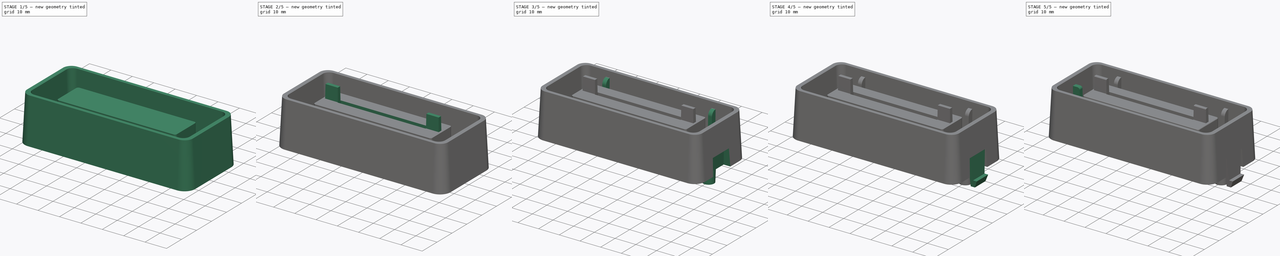
[diagram: build sequence overview — one tinted view per stage of 5, left to right]
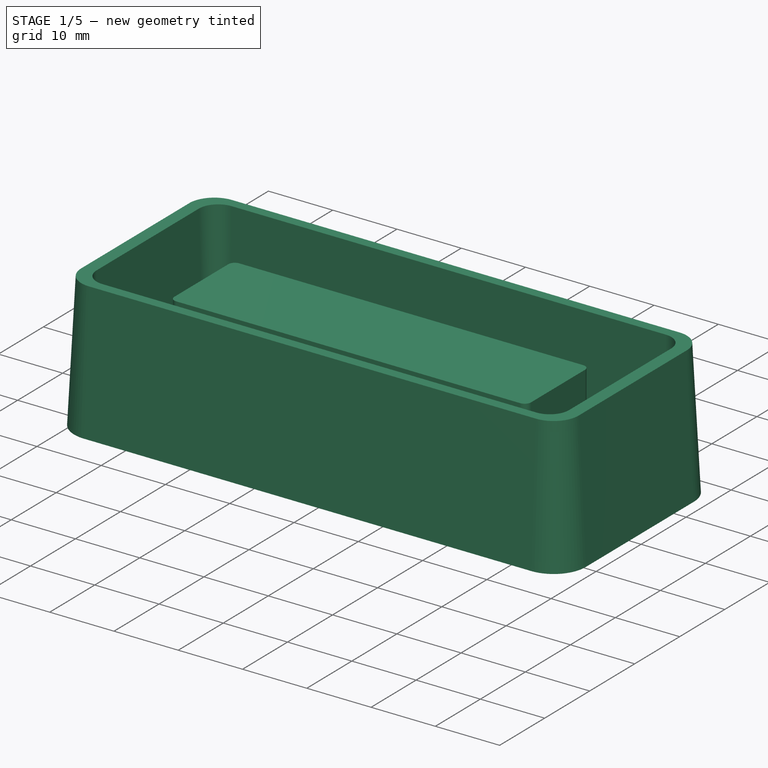
[diagram: stage 1 of 5 — iso view after this stage's code; geometry added in this stage tinted green]
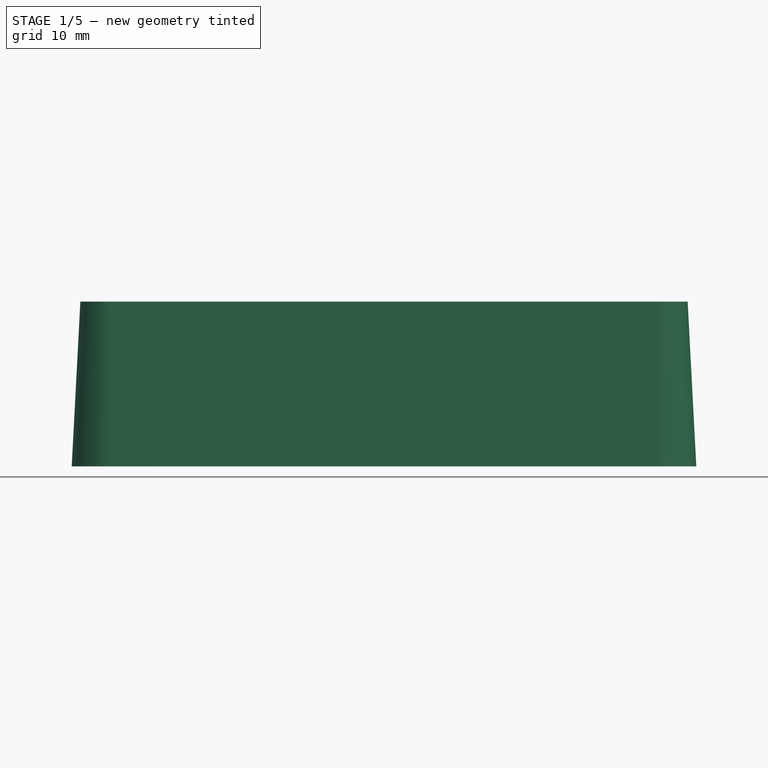
[diagram: stage 1 of 5 — front view after this stage's code; geometry added in this stage tinted green]
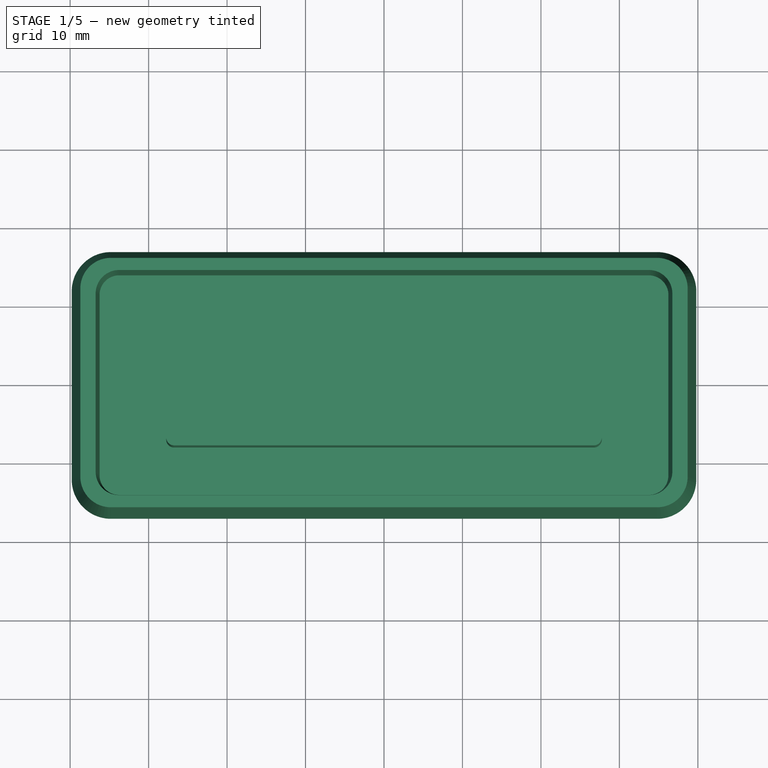
[diagram: stage 1 of 5 — top view after this stage's code; geometry added in this stage tinted green]
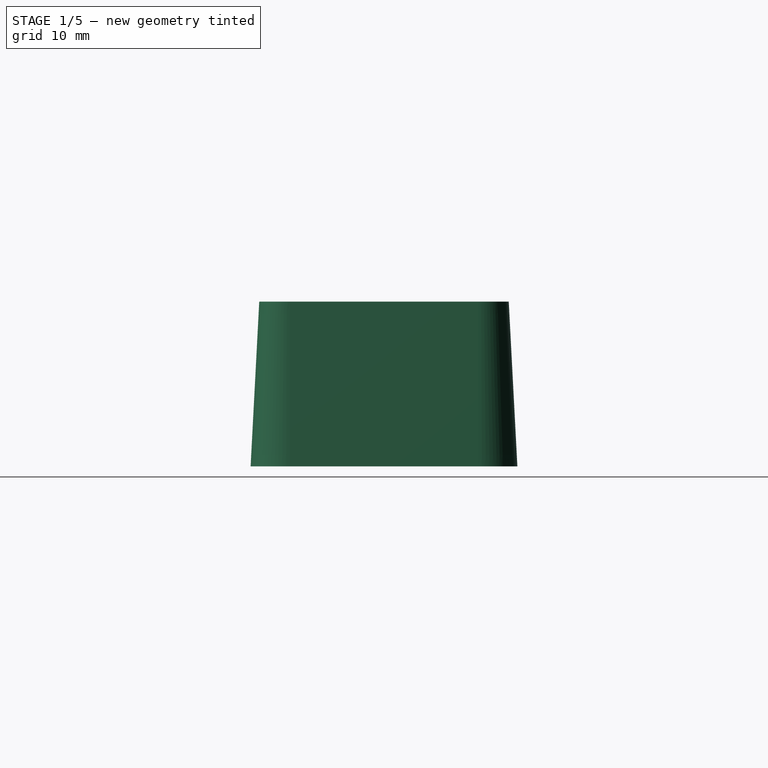
[diagram: stage 1 of 5 — right view after this stage's code; geometry added in this stage tinted green]
FCSTD DOCUMENT  (FreeCAD 1.0R38806 (Git))
Label: CartridgePort400
License: Creative Commons Attribution 4.0
LicenseURL: https://creativecommons.org/licenses/by/4.0/
objects: Sketcher::SketchObject×14, PartDesign::Pad×8, PartDesign::Pocket×6, PartDesign::SubShapeBinder×2, PartDesign::SubtractiveLoft×1, PartDesign::Fillet×1, PartDesign::Body×1
note: 79 computed .brp shape members not serialized (recipe doc carries the construction recipe); baked Part::Feature solids carry a one-line shape summary decoded from their .brp

FEATURE [Sketcher::SketchObject] Sketch
  ArcFitTolerance = 1e-06
  AttachmentSupport = -> [XY_Plane]
  FullyConstrained = true
  MakeInternals = false
  MapMode = 5
  sketch-geometry (10):
    g0: LineSegment StartX=-39.8 StartY=12 StartZ=0 EndX=-39.8 EndY=-12 EndZ=0
    g1: LineSegment StartX=-34.8 StartY=-17 StartZ=0 EndX=34.8 EndY=-17 EndZ=0
    g2: LineSegment StartX=39.8 StartY=-12 StartZ=0 EndX=39.8 EndY=12 EndZ=0
    g3: LineSegment StartX=34.8 StartY=17 StartZ=0 EndX=-34.8 EndY=17 EndZ=0
    g4: ArcOfCircle CenterX=-34.8 CenterY=12 CenterZ=0 NormalX=0 NormalY=0 NormalZ=1 AngleXU=0 Radius=5 StartAngle=1.5708 EndAngle=3.14159
    g5: ArcOfCircle CenterX=-34.8 CenterY=-12 CenterZ=0 NormalX=0 NormalY=0 NormalZ=1 AngleXU=0 Radius=5 StartAngle=3.14159 EndAngle=4.71239
    g6: ArcOfCircle CenterX=34.8 CenterY=-12 CenterZ=0 NormalX=0 NormalY=0 NormalZ=1 AngleXU=0 Radius=5 StartAngle=4.71239 EndAngle=6.28319
    g7: ArcOfCircle CenterX=34.8 CenterY=12 CenterZ=0 NormalX=0 NormalY=0 NormalZ=1 AngleXU=0 Radius=5 StartAngle=0 EndAngle=1.5708
    g8: GeomPoint [constr] X=-39.8 Y=17 Z=0
    g9: GeomPoint [constr] X=39.8 Y=-17 Z=0
  constraints (23):
    c: Tangent(g0,g4) = -1.5708
    c: Tangent(g0,g5) = -1.5708
    c: Tangent(g1,g5) = -1.5708
    c: Tangent(g1,g6) = -1.5708
    c: Tangent(g2,g6) = -1.5708
    c: Tangent(g2,g7) = -1.5708
    c: Tangent(g3,g7) = -1.5708
    c: Tangent(g3,g4) = -1.5708
    c: Vertical(g0)
    c: Vertical(g2)
    c: Horizontal(g1)
    c: Horizontal(g3)
    c: Equal(g4,g5)
    c: Equal(g5,g6)
    c: Equal(g6,g7)
    c: PointOnObject(g8,g0)
    c: PointOnObject(g8,g3)
    c: PointOnObject(g9,g1)
    c: PointOnObject(g9,g2)
    c: Distance(g0,g2) = 79.6
    c: Distance(g1,g3) = 34
    c: Radius(g5) = 5
    c: Symmetric(g5,g7,g-1)
FEATURE [PartDesign::Pad] Pad
  Direction = (0,0,1)
  Length = 21
  Length2 = 10
  Profile = -> Sketch
  ReferenceAxis = -> Sketch [N_Axis]
  Suppressed = false
  TaperAngle = -3
  Type = 0
FEATURE [Sketcher::SketchObject] Sketch001
  ArcFitTolerance = 1e-06
  AttachmentOffset = pos=(0,0,-2) rot=(0,0,1;0rad)
  AttachmentSupport = -> [Pad]
  FullyConstrained = true
  MakeInternals = false
  MapMode = 5
  Placement = pos=(0,0,2) rot=(1,0,0;3.14159rad)
  sketch-geometry (10):
    g0: LineSegment StartX=-36.25 StartY=11.5 StartZ=0 EndX=-36.25 EndY=-11.5 EndZ=0
    g1: LineSegment StartX=-33.75 StartY=-14 StartZ=0 EndX=33.75 EndY=-14 EndZ=0
    g2: LineSegment StartX=36.25 StartY=-11.5 StartZ=0 EndX=36.25 EndY=11.5 EndZ=0
    g3: LineSegment StartX=33.75 StartY=14 StartZ=0 EndX=-33.75 EndY=14 EndZ=0
    g4: ArcOfCircle CenterX=-33.75 CenterY=11.5 CenterZ=0 NormalX=0 NormalY=0 NormalZ=1 AngleXU=0 Radius=2.5 StartAngle=1.5708 EndAngle=3.14159
    g5: ArcOfCircle CenterX=-33.75 CenterY=-11.5 CenterZ=0 NormalX=0 NormalY=0 NormalZ=1 AngleXU=0 Radius=2.5 StartAngle=3.14159 EndAngle=4.71239
    g6: ArcOfCircle CenterX=33.75 CenterY=-11.5 CenterZ=0 NormalX=0 NormalY=0 NormalZ=1 AngleXU=0 Radius=2.5 StartAngle=4.71239 EndAngle=6.28319
    g7: ArcOfCircle CenterX=33.75 CenterY=11.5 CenterZ=0 NormalX=0 NormalY=0 NormalZ=1 AngleXU=0 Radius=2.5 StartAngle=0 EndAngle=1.5708
    g8: GeomPoint [constr] X=-36.25 Y=14 Z=0
    g9: GeomPoint [constr] X=36.25 Y=-14 Z=0
  constraints (23):
    c: Tangent(g0,g4) = -1.5708
    c: Tangent(g0,g5) = -1.5708
    c: Tangent(g1,g5) = -1.5708
    c: Tangent(g1,g6) = -1.5708
    c: Tangent(g2,g6) = -1.5708
    c: Tangent(g2,g7) = -1.5708
    c: Tangent(g3,g7) = -1.5708
    c: Tangent(g3,g4) = -1.5708
    c: Vertical(g0)
    c: Vertical(g2)
    c: Horizontal(g1)
    c: Horizontal(g3)
    c: Equal(g4,g5)
    c: Equal(g5,g6)
    c: Equal(g6,g7)
    c: PointOnObject(g8,g0)
    c: PointOnObject(g8,g3)
    c: PointOnObject(g9,g1)
    c: PointOnObject(g9,g2)
    c: Distance(g0,g2) = 72.5
    c: Distance(g1,g3) = 28
    c: Radius(g5) = 2.5
    c: Symmetric(g5,g7,g-1)
FEATURE [Sketcher::SketchObject] Sketch002
  ArcFitTolerance = 1e-06
  AttachmentSupport = -> [Pad]
  FullyConstrained = true
  MakeInternals = false
  MapMode = 5
  Placement = pos=(0,0,21) rot=(0,0,1;0rad)
  sketch-geometry (10):
    g0: LineSegment StartX=-36.75 StartY=11.35 StartZ=0 EndX=-36.75 EndY=-11.35 EndZ=0
    g1: LineSegment StartX=-33.75 StartY=-14.35 StartZ=0 EndX=33.75 EndY=-14.35 EndZ=0
    g2: LineSegment StartX=36.75 StartY=-11.35 StartZ=0 EndX=36.75 EndY=11.35 EndZ=0
    g3: LineSegment StartX=33.75 StartY=14.35 StartZ=0 EndX=-33.75 EndY=14.35 EndZ=0
    g4: ArcOfCircle CenterX=-33.75 CenterY=11.35 CenterZ=0 NormalX=0 NormalY=0 NormalZ=1 AngleXU=0 Radius=3 StartAngle=1.5708 EndAngle=3.14159
    g5: ArcOfCircle CenterX=-33.75 CenterY=-11.35 CenterZ=0 NormalX=0 NormalY=0 NormalZ=1 AngleXU=0 Radius=3 StartAngle=3.14159 EndAngle=4.71239
    g6: ArcOfCircle CenterX=33.75 CenterY=-11.35 CenterZ=0 NormalX=0 NormalY=0 NormalZ=1 AngleXU=0 Radius=3 StartAngle=4.71239 EndAngle=6.28319
    g7: ArcOfCircle CenterX=33.75 CenterY=11.35 CenterZ=0 NormalX=0 NormalY=0 NormalZ=1 AngleXU=0 Radius=3 StartAngle=0 EndAngle=1.5708
    g8: GeomPoint [constr] X=-36.75 Y=14.35 Z=0
    g9: GeomPoint [constr] X=36.75 Y=-14.35 Z=0
  constraints (23):
    c: Tangent(g0,g4) = -1.5708
    c: Tangent(g0,g5) = -1.5708
    c: Tangent(g1,g5) = -1.5708
    c: Tangent(g1,g6) = -1.5708
    c: Tangent(g2,g6) = -1.5708
    c: Tangent(g2,g7) = -1.5708
    c: Tangent(g3,g7) = -1.5708
    c: Tangent(g3,g4) = -1.5708
    c: Vertical(g0)
    c: Vertical(g2)
    c: Horizontal(g1)
    c: Horizontal(g3)
    c: Equal(g4,g5)
    c: Equal(g5,g6)
    c: Equal(g6,g7)
    c: PointOnObject(g8,g0)
    c: PointOnObject(g8,g3)
    c: PointOnObject(g9,g1)
    c: PointOnObject(g9,g2)
    c: Distance(g0,g2) = 73.5
    c: Distance(g1,g3) = 28.7
    c: Radius(g5) = 3
    c: Symmetric(g5,g7,g-1)
FEATURE [PartDesign::SubtractiveLoft] SubtractiveLoft
  BaseFeature = -> Pad
  Closed = false
  Profile = -> Sketch001
  Ruled = true
  Sections = -> [Sketch002]
  Suppressed = false
FEATURE [Sketcher::SketchObject] Sketch003
  ArcFitTolerance = 1e-06
  AttachmentOffset = pos=(0,0,-3) rot=(0,0,1;0rad)
  AttachmentSupport = -> [SubtractiveLoft]
  ExternalGeometry = -> [SubtractiveLoft]
  FullyConstrained = true
  MakeInternals = false
  MapMode = 5
  Placement = pos=(0,0,18) rot=(0,0,1;0rad)
  sketch-geometry (10):
    g0: LineSegment StartX=-27.75 StartY=5.05 StartZ=0 EndX=-27.75 EndY=-6.95 EndZ=0
    g1: LineSegment StartX=-26.75 StartY=-7.95 StartZ=0 EndX=26.75 EndY=-7.95 EndZ=0
    g2: LineSegment StartX=27.75 StartY=-6.95 StartZ=0 EndX=27.75 EndY=5.05 EndZ=0
    g3: LineSegment StartX=26.75 StartY=6.05 StartZ=0 EndX=-26.75 EndY=6.05 EndZ=0
    g4: ArcOfCircle CenterX=-26.75 CenterY=5.05 CenterZ=0 NormalX=0 NormalY=0 NormalZ=1 AngleXU=0 Radius=1 StartAngle=1.5708 EndAngle=3.14159
    g5: ArcOfCircle CenterX=-26.75 CenterY=-6.95 CenterZ=0 NormalX=0 NormalY=0 NormalZ=1 AngleXU=0 Radius=1 StartAngle=3.14159 EndAngle=4.71239
    g6: ArcOfCircle CenterX=26.75 CenterY=-6.95 CenterZ=0 NormalX=0 NormalY=0 NormalZ=1 AngleXU=0 Radius=1 StartAngle=4.71239 EndAngle=6.28319
    g7: ArcOfCircle CenterX=26.75 CenterY=5.05 CenterZ=0 NormalX=0 NormalY=0 NormalZ=1 AngleXU=0 Radius=1 StartAngle=0 EndAngle=1.5708
    g8: GeomPoint [constr] X=-27.75 Y=6.05 Z=0
    g9: GeomPoint [constr] X=27.75 Y=-7.95 Z=0
  constraints (23):
    c: Tangent(g0,g4) = -1.5708
    c: Tangent(g0,g5) = -1.5708
    c: Tangent(g1,g5) = -1.5708
    c: Tangent(g1,g6) = -1.5708
    c: Tangent(g2,g6) = -1.5708
    c: Tangent(g2,g7) = -1.5708
    c: Tangent(g3,g7) = -1.5708
    c: Tangent(g3,g4) = -1.5708
    c: Vertical(g0)
    c: Vertical(g2)
    c: Horizontal(g1)
    c: Horizontal(g3)
    c: Equal(g4,g5)
    c: Equal(g5,g6)
    c: PointOnObject(g8,g0)
    c: PointOnObject(g8,g3)
    c: PointOnObject(g9,g1)
    c: PointOnObject(g9,g2)
    c: Distance(g0,g2) = 55.5
    c: Distance(g1,g3) = 14
    c: Radius(g5) = 1
    c: Symmetric(g0,g2,g-2)
    c: DistanceY(g3,g-3) = 8.3
FEATURE [PartDesign::Pad] Pad001
  BaseFeature = -> SubtractiveLoft
  Direction = (0,0,1)
  Length = 20
  Length2 = 10
  Profile = -> Sketch003
  ReferenceAxis = -> Sketch003 [N_Axis]
  Reversed = true
  Suppressed = false
  Type = 3
  UpToFace = -> SubtractiveLoft [Face19]
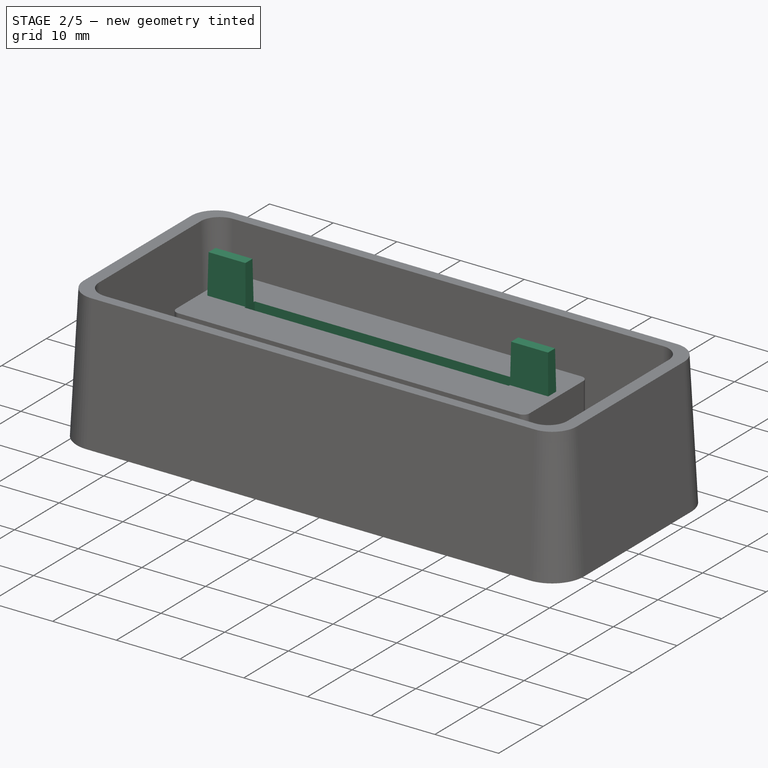
[diagram: stage 2 of 5 — iso view after this stage's code; geometry added in this stage tinted green]
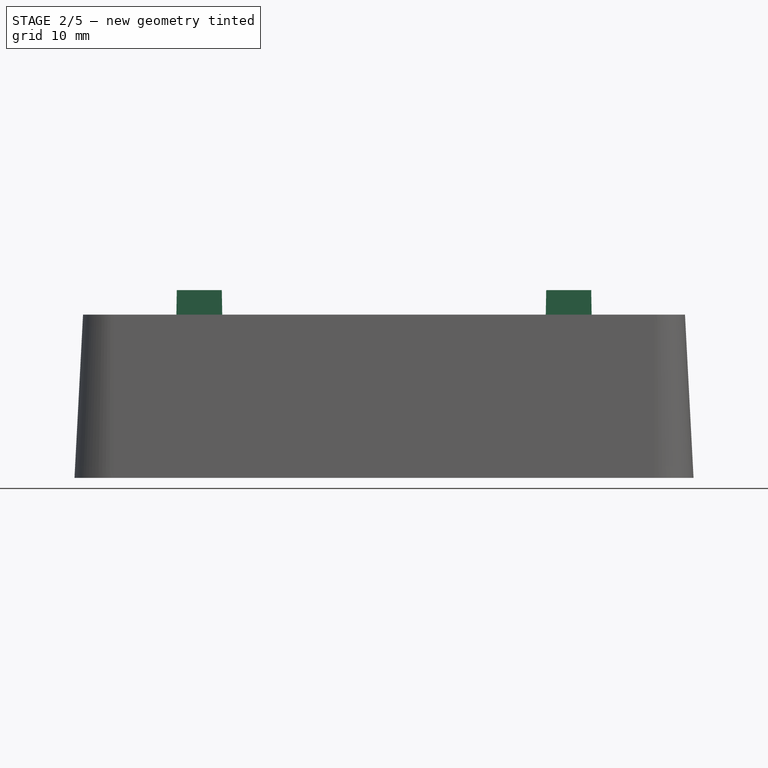
[diagram: stage 2 of 5 — front view after this stage's code; geometry added in this stage tinted green]
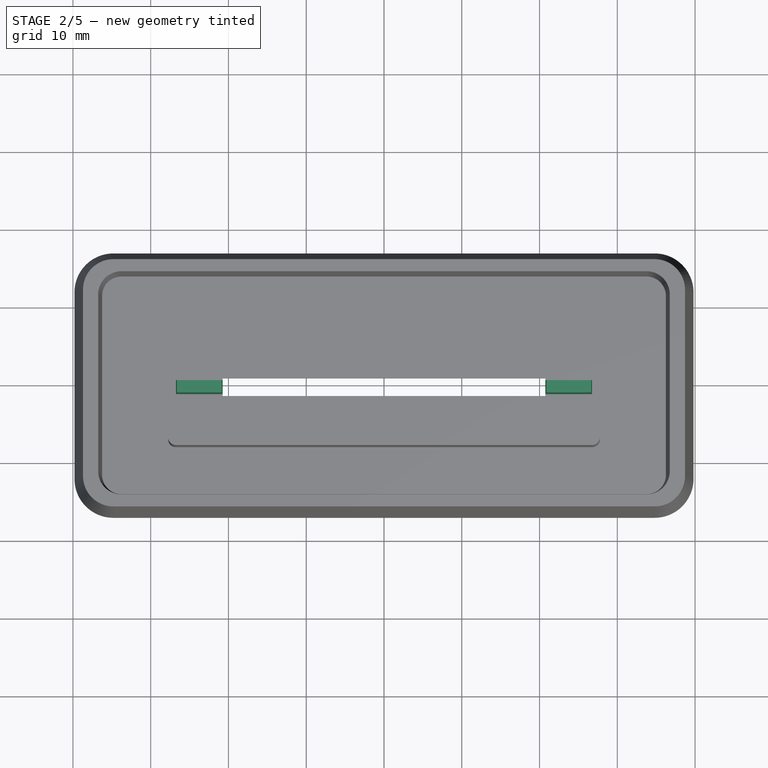
[diagram: stage 2 of 5 — top view after this stage's code; geometry added in this stage tinted green]
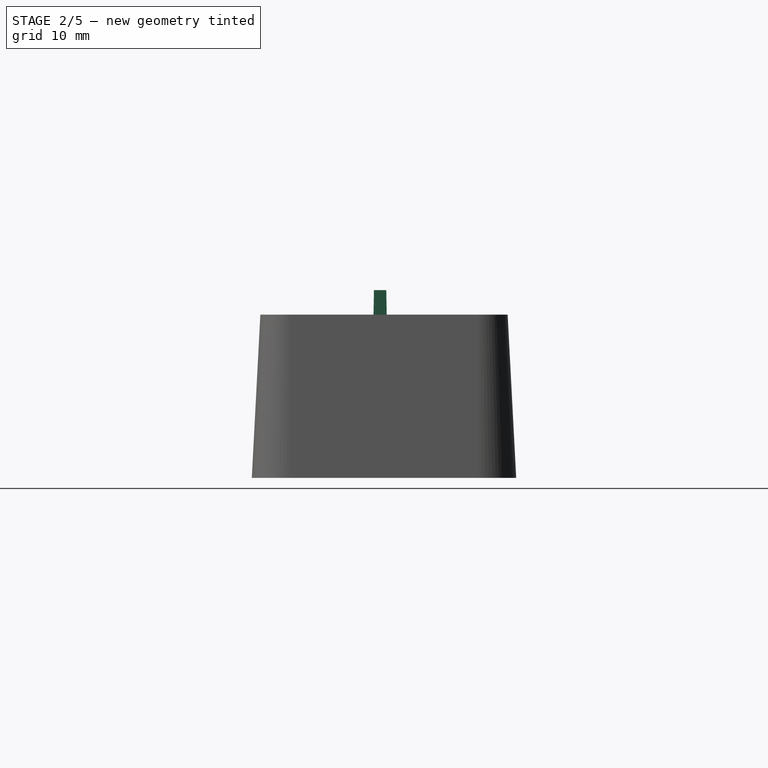
[diagram: stage 2 of 5 — right view after this stage's code; geometry added in this stage tinted green]
FEATURE [Sketcher::SketchObject] Sketch004
  ArcFitTolerance = 1e-06
  AttachmentSupport = -> [Pad001]
  ExternalGeometry = -> [Pad001]
  FullyConstrained = true
  MakeInternals = false
  MapMode = 5
  Placement = pos=(0,0,0) rot=(1,0,0;3.14159rad)
  sketch-geometry (4):
    g0: LineSegment StartX=-26 StartY=5.75 StartZ=0 EndX=-26 EndY=-4.75 EndZ=0
    g1: LineSegment StartX=-26 StartY=-4.75 StartZ=0 EndX=26 EndY=-4.75 EndZ=0
    g2: LineSegment StartX=26 StartY=-4.75 StartZ=0 EndX=26 EndY=5.75 EndZ=0
    g3: LineSegment StartX=26 StartY=5.75 StartZ=0 EndX=-26 EndY=5.75 EndZ=0
  constraints (11):
    c: Coincident(g0,g1)
    c: Coincident(g1,g2)
    c: Coincident(g2,g3)
    c: Coincident(g3,g0)
    c: Vertical(g0)
    c: Vertical(g2)
    c: Horizontal(g1)
    c: Distance(g0,g2) = 52
    c: Distance(g1,g3) = 10.5
    c: Symmetric(g0,g2,g-2)
    c: DistanceY(g-3,g1) = 12.25
FEATURE [PartDesign::Pocket] Pocket
  BaseFeature = -> Pad001
  Direction = (0,0,1)
  Length = 16
  Length2 = 5
  Profile = -> Sketch004
  ReferenceAxis = -> Sketch004 [N_Axis]
  Suppressed = false
  Type = 0
FEATURE [Sketcher::SketchObject] Sketch005
  ArcFitTolerance = 1e-06
  AttachmentSupport = -> [Pocket]
  ExternalGeometry = -> [Pocket]
  FullyConstrained = true
  MakeInternals = false
  MapMode = 5
  Placement = pos=(0,0,18) rot=(0,0,1;0rad)
  sketch-geometry (5):
    g0: LineSegment StartX=-20.75 StartY=0.65 StartZ=0 EndX=-20.75 EndY=-1.65 EndZ=0
    g1: LineSegment StartX=-20.75 StartY=-1.65 StartZ=0 EndX=20.75 EndY=-1.65 EndZ=0
    g2: LineSegment StartX=20.75 StartY=-1.65 StartZ=0 EndX=20.75 EndY=0.65 EndZ=0
    g3: LineSegment StartX=20.75 StartY=0.65 StartZ=0 EndX=-20.75 EndY=0.65 EndZ=0
    g4: GeomPoint X=-1.2e-15 Y=-0.5 Z=0
  constraints (12):
    c: Coincident(g0,g1)
    c: Coincident(g1,g2)
    c: Coincident(g2,g3)
    c: Coincident(g3,g0)
    c: Vertical(g0)
    c: Vertical(g2)
    c: Horizontal(g1)
    c: Horizontal(g3)
    c: Distance(g0,g2) = 41.5
    c: Distance(g1,g3) = 2.3
    c: Symmetric(g0,g2,g4)
    c: Symmetric(g-4,g-3,g4)
FEATURE [PartDesign::Pocket] Pocket001
  BaseFeature = -> Pocket
  Direction = (0,0,-1)
  Length = 5
  Length2 = 5
  Profile = -> Sketch005
  ReferenceAxis = -> Sketch005 [N_Axis]
  Suppressed = false
  Type = 1
FEATURE [Sketcher::SketchObject] Sketch006
  ArcFitTolerance = 1e-06
  AttachmentSupport = -> [Pocket001]
  ExternalGeometry = -> [Pocket001]
  FullyConstrained = true
  MakeInternals = false
  MapMode = 5
  Placement = pos=(0,0,18) rot=(0,0,1;0rad)
  sketch-geometry (10):
    g0: LineSegment StartX=20.75 StartY=0.4 StartZ=0 EndX=20.75 EndY=-1.4 EndZ=0
    g1: LineSegment StartX=20.75 StartY=-1.4 StartZ=0 EndX=26.75 EndY=-1.4 EndZ=0
    g2: LineSegment StartX=26.75 StartY=-1.4 StartZ=0 EndX=26.75 EndY=0.4 EndZ=0
    g3: LineSegment StartX=26.75 StartY=0.4 StartZ=0 EndX=20.75 EndY=0.4 EndZ=0
    g4: GeomPoint X=20.75 Y=-0.5 Z=0
    g5: GeomPoint X=-20.75 Y=-0.5 Z=0
    g6: LineSegment StartX=-20.75 StartY=0.4 StartZ=0 EndX=-26.75 EndY=0.4 EndZ=0
    g7: LineSegment StartX=-26.75 StartY=0.4 StartZ=0 EndX=-26.75 EndY=-1.4 EndZ=0
    g8: LineSegment StartX=-26.75 StartY=-1.4 StartZ=0 EndX=-20.75 EndY=-1.4 EndZ=0
    g9: LineSegment StartX=-20.75 StartY=-1.4 StartZ=0 EndX=-20.75 EndY=0.4 EndZ=0
  constraints (24):
    c: Coincident(g0,g1)
    c: Coincident(g1,g2)
    c: Coincident(g2,g3)
    c: Coincident(g3,g0)
    c: Vertical(g0)
    c: Vertical(g2)
    c: Horizontal(g1)
    c: Horizontal(g3)
    c: Distance(g0,g2) = 6
    c: Distance(g1,g3) = 1.8
    c: Symmetric(g-4,g-4,g4)
    c: Symmetric(g-3,g-3,g5)
    c: Symmetric(g0,g0,g4)
    c: Coincident(g6,g7)
    c: Coincident(g7,g8)
    c: Coincident(g8,g9)
    c: Coincident(g9,g6)
    c: Horizontal(g6)
    c: Horizontal(g8)
    c: Vertical(g7)
    c: Vertical(g9)
    c: Equal(g6,g3)
    c: Equal(g7,g2)
    c: Symmetric(g6,g8,g5)
FEATURE [PartDesign::Pad] Pad002
  BaseFeature = -> Pocket001
  Direction = (0,0,1)
  Length = 6.15
  Length2 = 10
  Profile = -> Sketch006
  ReferenceAxis = -> Sketch006 [N_Axis]
  Refine = true
  Suppressed = false
  TaperAngle = -1
  Type = 0
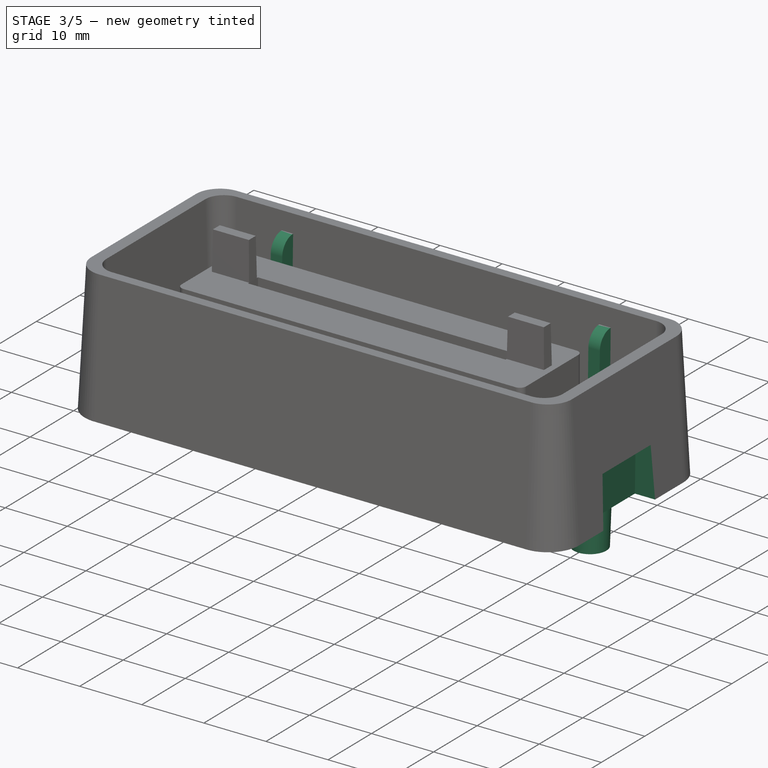
[diagram: stage 3 of 5 — iso view after this stage's code; geometry added in this stage tinted green]
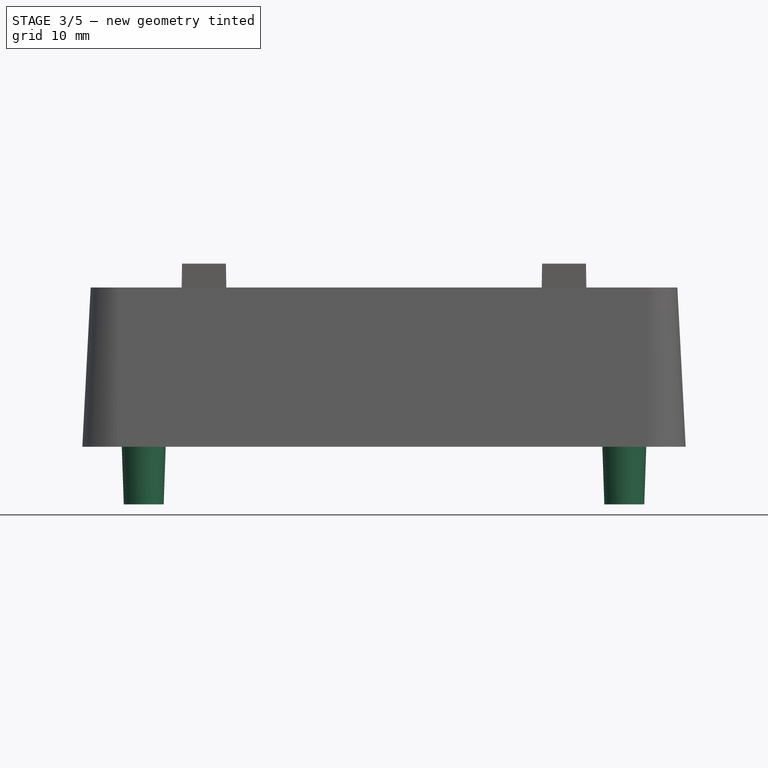
[diagram: stage 3 of 5 — front view after this stage's code; geometry added in this stage tinted green]
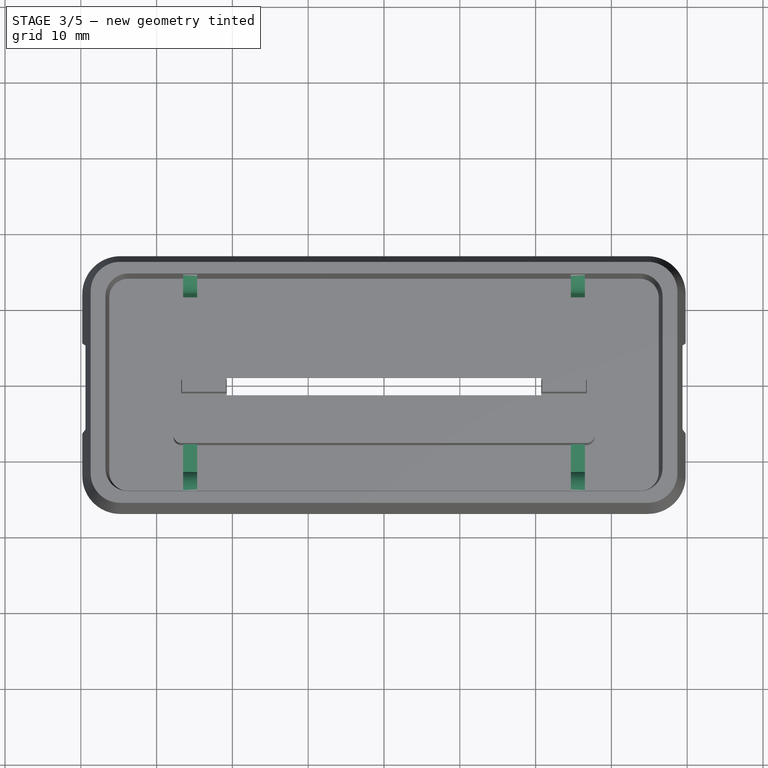
[diagram: stage 3 of 5 — top view after this stage's code; geometry added in this stage tinted green]
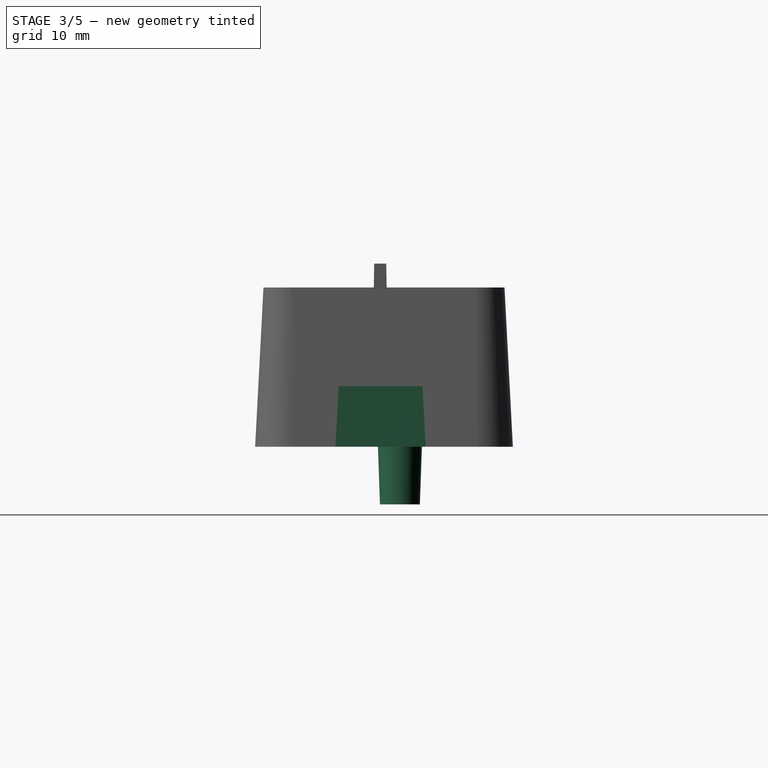
[diagram: stage 3 of 5 — right view after this stage's code; geometry added in this stage tinted green]
FEATURE [Sketcher::SketchObject] Sketch007
  ArcFitTolerance = 1e-06
  AttachmentOffset = pos=(0,0,-24.65) rot=(0,0,1;0rad)
  AttachmentSupport = -> [YZ_Plane]
  ExternalGeometry = -> [Pad002]
  FullyConstrained = true
  MakeInternals = false
  MapMode = 5
  Placement = pos=(-24.65,0,0) rot=(0.57735,0.57735,0.57735;2.0944rad)
  sketch-geometry (13):
    g0: LineSegment StartX=14.2966 StartY=0 StartZ=0 EndX=14.2966 EndY=18.1005 EndZ=0
    g1: ArcOfCircle CenterX=14.2966 CenterY=15.6005 CenterZ=0 NormalX=0 NormalY=0 NormalZ=1 AngleXU=0 Radius=2.5 StartAngle=1.5708 EndAngle=3.12317
    g2: LineSegment StartX=11.797 StartY=15.6465 StartZ=0 EndX=11.5088 EndY=0 EndZ=0
    g3: LineSegment StartX=11.5088 StartY=0 StartZ=0 EndX=14.2966 EndY=0 EndZ=0
    g4: LineSegment [constr] StartX=14.35 StartY=21 StartZ=0 EndX=14 EndY=2 EndZ=0
    g5: LineSegment [constr] StartX=-14.35 StartY=21 StartZ=0 EndX=-14 EndY=2 EndZ=0
    g6: LineSegment [constr] StartX=-7.95 StartY=18 StartZ=0 EndX=-7.95 EndY=2 EndZ=0
    g7: LineSegment StartX=-14 StartY=2 StartZ=0 EndX=-7.95 EndY=2 EndZ=0
    g8: LineSegment StartX=-7.95 StartY=2 StartZ=0 EndX=-7.95 EndY=9 EndZ=0
    g9: LineSegment StartX=-7.95 StartY=9 StartZ=0 EndX=-11.6285 EndY=9 EndZ=0
    g10: LineSegment StartX=-11.6285 StartY=9 StartZ=0 EndX=-11.7491 EndY=15.5465 EndZ=0
    g11: ArcOfCircle CenterX=-14.2487 CenterY=15.5004 CenterZ=0 NormalX=0 NormalY=0 NormalZ=1 AngleXU=0 Radius=2.5 StartAngle=0.018419 EndAngle=1.58922
    g12: LineSegment StartX=-14.2947 StartY=18 StartZ=0 EndX=-14 EndY=2 EndZ=0
  constraints (33):
    c: PointOnObject(g0,g-1)
    c: Vertical(g0)
    c: Perpendicular(g0,g1) = 1.5708
    c: PointOnObject(g2,g-1)
    c: Coincident(g2,g3)
    c: Coincident(g3,g0)
    c: Coincident(g4,g-3)
    c: Coincident(g4,g-4)
    c: Tangent(g1,g2) = -1.5708
    c: PointOnObject(g0,g4)
    c: Distance(g4,g0) = 2.9
    c: Distance(g1,g1) = 2.5
    c: Parallel(g2,g4)
    c: Coincident(g5,g-5)
    c: Coincident(g5,g-6)
    c: Coincident(g6,g-7)
    c: Coincident(g6,g-8)
    c: Coincident(g5,g7)
    c: Coincident(g7,g6)
    c: Coincident(g7,g8)
    c: PointOnObject(g8,g6)
    c: Coincident(g8,g9)
    c: Horizontal(g9)
    c: Coincident(g9,g10)
    c: Tangent(g10,g11) = -1.5708
    c: PointOnObject(g11,g5)
    c: Coincident(g11,g12)
    c: Coincident(g12,g7)
    c: Parallel(g12,g10)
    c: PointOnObject(g11,g12)
    c: DistanceY(g9,g5) = 12
    c: DistanceY(g11,g5) = 3
    c: Distance(g11,g10) = 2.5
FEATURE [PartDesign::SubShapeBinder] Binder
  BindCopyOnChange = 0
  BindMode = 0
  ClaimChildren = false
  Context = -> Body [Binder.]
  Fuse = false
  MakeFace = true
  OffsetFill = false
  OffsetIntersection = false
  OffsetJoinType = 0
  OffsetOpenResult = false
  PartialLoad = false
  Placement = pos=(49.3,0,0) rot=(0,0,1;0rad)
  Relative = true
  Support = -> [Sketch007]
  _Version = 2
FEATURE [PartDesign::Pad] Pad003
  BaseFeature = -> Pad002
  Direction = (1,0,0)
  Length = 1.85
  Length2 = 10
  Profile = -> Sketch007
  ReferenceAxis = -> Sketch007 [N_Axis]
  Reversed = true
  Suppressed = false
  Type = 0
FEATURE [PartDesign::Pad] Pad004
  BaseFeature = -> Pad003
  Direction = (1,0,0)
  Length = 1.85
  Length2 = 10
  Profile = -> Binder
  Refine = true
  Suppressed = false
  Type = 0
FEATURE [Sketcher::SketchObject] Sketch008
  ArcFitTolerance = 1e-06
  AttachmentSupport = -> [Pad004]
  ExternalGeometry = -> [Pad004]
  FullyConstrained = true
  MakeInternals = false
  MapMode = 5
  Placement = pos=(0,0,0) rot=(1,0,0;3.14159rad)
  sketch-geometry (2):
    g0: Circle CenterX=-31.7 CenterY=-2.1 CenterZ=0 NormalX=0 NormalY=0 NormalZ=1 AngleXU=0 Radius=2.9
    g1: Circle CenterX=31.7 CenterY=-2.1 CenterZ=0 NormalX=0 NormalY=0 NormalZ=1 AngleXU=0 Radius=2.9
  constraints (5):
    c: Equal(g0,g1)
    c: Diameter(g1) = 5.8
    c: Symmetric(g0,g1,g-2)
    c: DistanceY(g-3,g1) = 14.9
    c: DistanceX(g0,g1) = 63.4
FEATURE [PartDesign::Pad] Pad005
  BaseFeature = -> Pad004
  Direction = (0,0,-1)
  Length = 7.6
  Length2 = 10
  Profile = -> Sketch008
  ReferenceAxis = -> Sketch008 [N_Axis]
  Suppressed = false
  TaperAngle = 2
  Type = 0
FEATURE [Sketcher::SketchObject] Sketch009
  ArcFitTolerance = 1e-06
  AttachmentSupport = -> [Pad005]
  ExternalGeometry = -> [Pad005]
  FullyConstrained = true
  MakeInternals = false
  MapMode = 5
  Placement = pos=(0,0,0) rot=(1,0,0;3.14159rad)
  sketch-geometry (8):
    g0: LineSegment StartX=-39.8 StartY=6.4 StartZ=0 EndX=-39.8 EndY=-5.5 EndZ=0
    g1: LineSegment StartX=-39.8 StartY=-5.5 StartZ=0 EndX=-36.55 EndY=-5.5 EndZ=0
    g2: LineSegment StartX=-36.55 StartY=-5.5 StartZ=0 EndX=-36.55 EndY=6.4 EndZ=0
    g3: LineSegment StartX=-36.55 StartY=6.4 StartZ=0 EndX=-39.8 EndY=6.4 EndZ=0
    g4: LineSegment StartX=39.8 StartY=6.4 StartZ=0 EndX=36.55 EndY=6.4 EndZ=0
    g5: LineSegment StartX=36.55 StartY=6.4 StartZ=0 EndX=36.55 EndY=-5.5 EndZ=0
    g6: LineSegment StartX=36.55 StartY=-5.5 StartZ=0 EndX=39.8 EndY=-5.5 EndZ=0
    g7: LineSegment StartX=39.8 StartY=-5.5 StartZ=0 EndX=39.8 EndY=6.4 EndZ=0
  constraints (24):
    c: Coincident(g0,g1)
    c: Coincident(g1,g2)
    c: Coincident(g2,g3)
    c: Coincident(g3,g0)
    c: Vertical(g0)
    c: Vertical(g2)
    c: Horizontal(g1)
    c: Horizontal(g3)
    c: Distance(g0,g2) = 3.25
    c: Distance(g1,g3) = 11.9
    c: PointOnObject(g0,g-3)
    c: DistanceY(g-5,g1) = 11.5
    c: Coincident(g4,g5)
    c: Coincident(g5,g6)
    c: Coincident(g6,g7)
    c: Coincident(g7,g4)
    c: Horizontal(g4)
    c: Horizontal(g6)
    c: Vertical(g5)
    c: Vertical(g7)
    c: PointOnObject(g4,g-4)
    c: Equal(g3,g4)
    c: Horizontal(g2,g4)
    c: Horizontal(g1,g5)
FEATURE [PartDesign::Pocket] Pocket002
  BaseFeature = -> Pad005
  Direction = (0,0,1)
  Length = 8
  Length2 = 5
  Profile = -> Sketch009
  ReferenceAxis = -> Sketch009 [N_Axis]
  Suppressed = false
  TaperAngle = -3
  Type = 0
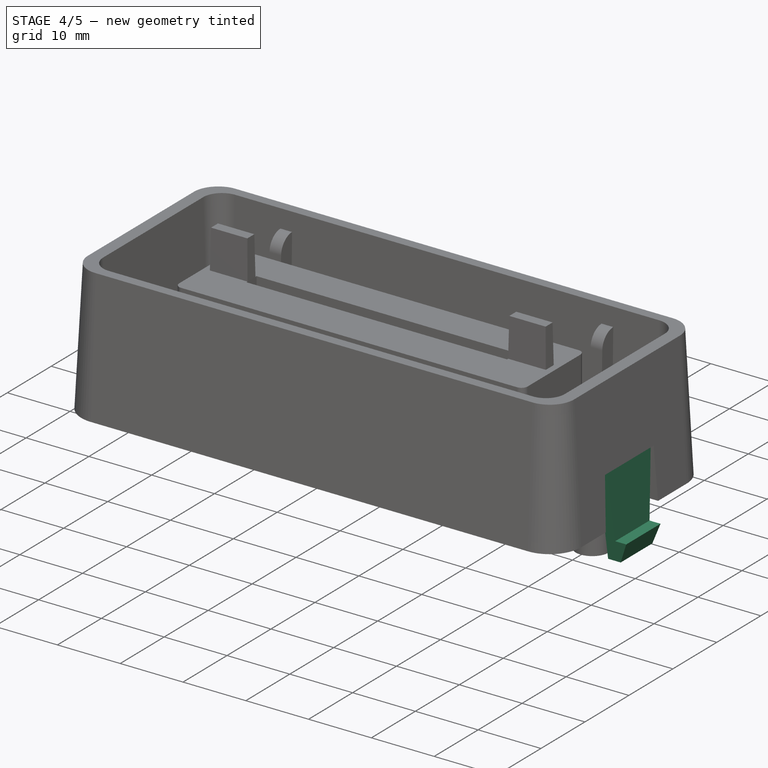
[diagram: stage 4 of 5 — iso view after this stage's code; geometry added in this stage tinted green]
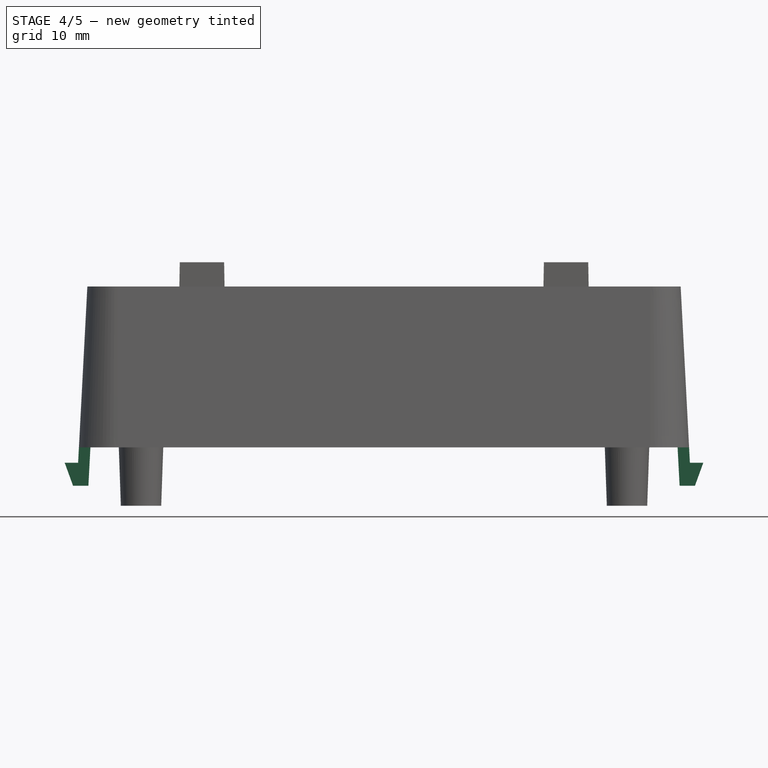
[diagram: stage 4 of 5 — front view after this stage's code; geometry added in this stage tinted green]
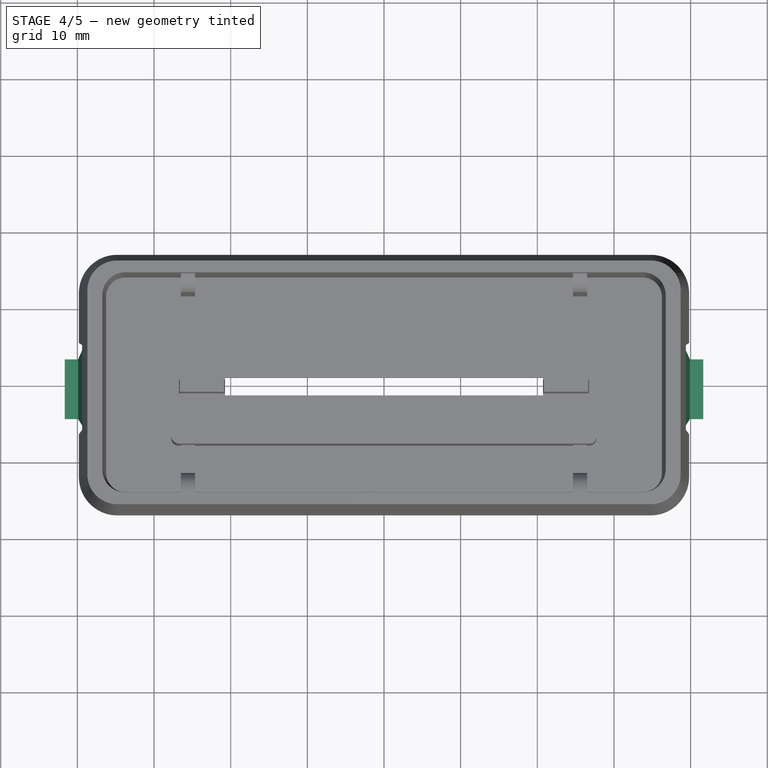
[diagram: stage 4 of 5 — top view after this stage's code; geometry added in this stage tinted green]
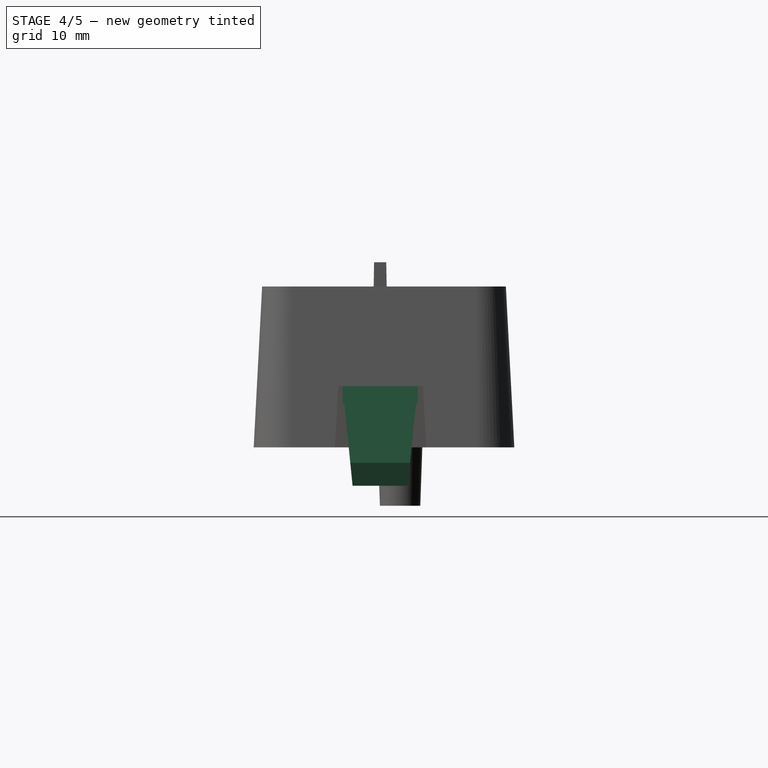
[diagram: stage 4 of 5 — right view after this stage's code; geometry added in this stage tinted green]
FEATURE [Sketcher::SketchObject] Sketch010
  ArcFitTolerance = 1e-06
  AttachmentOffset = pos=(0,0,0.5) rot=(0,0,1;0rad)
  AttachmentSupport = -> [XZ_Plane]
  ExternalGeometry = -> [Pocket002]
  FullyConstrained = true
  MakeInternals = false
  MapMode = 5
  Placement = pos=(0,-0.5,1e-16) rot=(1,0,0;1.5708rad)
  sketch-geometry (15):
    g0: LineSegment StartX=-39.3807 StartY=8 StartZ=0 EndX=-36.4807 EndY=8 EndZ=0
    g1: LineSegment StartX=-38.562 StartY=-5 StartZ=0 EndX=-40.5629 EndY=-5 EndZ=0
    g2: LineSegment StartX=-40.5629 StartY=-5 StartZ=0 EndX=-41.6548 EndY=-2 EndZ=0
    g3: LineSegment StartX=-41.6548 StartY=-2 StartZ=0 EndX=-39.9048 EndY=-2 EndZ=0
    g4: LineSegment StartX=-39.9048 StartY=-2 StartZ=0 EndX=-39.3807 EndY=8 EndZ=0
    g5: LineSegment StartX=39.3807 StartY=8 StartZ=0 EndX=39.9048 EndY=-2 EndZ=0
    g6: LineSegment StartX=39.9048 StartY=-2 StartZ=0 EndX=41.6548 EndY=-2 EndZ=0
    g7: LineSegment StartX=41.6548 StartY=-2 StartZ=0 EndX=40.5629 EndY=-5 EndZ=0
    g8: LineSegment StartX=40.5629 StartY=-5 StartZ=0 EndX=38.562 EndY=-5 EndZ=0
    g9: LineSegment StartX=36.4807 StartY=8 StartZ=0 EndX=39.3807 EndY=8 EndZ=0
    g10: LineSegment StartX=-38.0022 StartY=5.6817 StartZ=0 EndX=-38.562 EndY=-5 EndZ=0
    g11: ArcOfCircle CenterX=-35.256 CenterY=5.53778 CenterZ=0 NormalX=0 NormalY=0 NormalZ=1 AngleXU=0 Radius=2.75 StartAngle=2.03237 EndAngle=3.08923
    g12: GeomPoint X=-38.3 Y=0 Z=0
    g13: LineSegment StartX=38.562 StartY=-5 StartZ=0 EndX=38.0022 EndY=5.6817 EndZ=0
    g14: ArcOfCircle CenterX=35.256 CenterY=5.53778 CenterZ=0 NormalX=0 NormalY=0 NormalZ=1 AngleXU=0 Radius=2.75 StartAngle=0.0523599 EndAngle=1.10922
  constraints (43):
    c: Horizontal(g0)
    c: Coincident(g10,g1)
    c: Horizontal(g1)
    c: Coincident(g1,g2)
    c: Coincident(g2,g3)
    c: Horizontal(g3)
    c: Coincident(g3,g4)
    c: Coincident(g4,g0)
    c: DistanceX(g3,g3) = 1.75
    c: DistanceY(g10,g3) = 3
    c: Coincident(g5,g6)
    c: Horizontal(g6)
    c: Coincident(g6,g7)
    c: Coincident(g7,g8)
    c: Horizontal(g8)
    c: Coincident(g8,g13)
    c: Coincident(g9,g5)
    c: Horizontal(g9)
    c: Horizontal(g3,g5)
    c: Horizontal(g10,g8)
    c: Equal(g1,g8)
    c: PointOnObject(g0,g-4)
    c: PointOnObject(g5,g-3)
    c: Coincident(g5,g-5)
    c: DistanceY(g5,g-3) = 2
    c: Horizontal(g0,g9)
    c: PointOnObject(g3,g-4)
    c: Angle(g2,g3) = 1.22173
    c: Parallel(g4,g10)
    c: PointOnObject(g12,g10)
    c: PointOnObject(g12,g-1)
    c: Distance(g-4,g12) = 1.5
    c: Radius(g11) = 2.75
    c: Tangent(g11,g10) = -1.5708
    c: Coincident(g0,g11)
    c: Distance(g0,g0) = 2.9
    c: Parallel(g13,g5)
    c: Coincident(g14,g9)
    c: Tangent(g14,g13) = -1.5708
    c: Horizontal(g11,g14)
    c: Horizontal(g10,g13)
    c: Equal(g0,g9)
    c: Angle(g6,g7) = 1.22173
FEATURE [PartDesign::Pad] Pad006
  BaseFeature = -> Pocket002
  Direction = (0,-1,2e-16)
  Length = 9.8
  Length2 = 10
  Midplane = true
  Profile = -> Sketch010
  ReferenceAxis = -> Sketch010 [N_Axis]
  Refine = true
  Suppressed = false
  Type = 0
FEATURE [Sketcher::SketchObject] Sketch011
  ArcFitTolerance = 1e-06
  AttachmentOffset = pos=(0,0,42) rot=(0,0,1;0rad)
  AttachmentSupport = -> [YZ_Plane]
  ExternalGeometry = -> [Pad006]
  FullyConstrained = true
  MakeInternals = false
  MapMode = 5
  Placement = pos=(42,0,0) rot=(0.57735,0.57735,0.57735;2.0944rad)
  sketch-geometry (6):
    g0: LineSegment StartX=-5.4 StartY=8 StartZ=0 EndX=-5.4 EndY=-5 EndZ=0
    g1: LineSegment StartX=-5.4 StartY=-5 StartZ=0 EndX=-4.1 EndY=-5 EndZ=0
    g2: LineSegment StartX=-4.1 StartY=-5 StartZ=0 EndX=-5.4 EndY=8 EndZ=0
    g3: LineSegment StartX=4.4 StartY=8 StartZ=0 EndX=4.4 EndY=-5 EndZ=0
    g4: LineSegment StartX=4.4 StartY=-5 StartZ=0 EndX=3.1 EndY=-5 EndZ=0
    g5: LineSegment StartX=3.1 StartY=-5 StartZ=0 EndX=4.4 EndY=8 EndZ=0
  constraints (14):
    c: Coincident(g0,g-4)
    c: Coincident(g0,g-3)
    c: Coincident(g0,g1)
    c: PointOnObject(g1,g-3)
    c: Coincident(g1,g2)
    c: Coincident(g2,g0)
    c: Coincident(g3,g-5)
    c: Coincident(g3,g-3)
    c: Coincident(g3,g4)
    c: PointOnObject(g4,g-3)
    c: Coincident(g4,g5)
    c: Coincident(g5,g3)
    c: Equal(g1,g4)
    c: DistanceX(g1,g4) = 7.2
FEATURE [PartDesign::Pocket] Pocket003
  BaseFeature = -> Pad006
  Direction = (-1,0,0)
  Length = 0
  Length2 = 5
  Profile = -> Sketch011
  ReferenceAxis = -> Sketch011 [N_Axis]
  Suppressed = false
  Type = 3
  UpToFace = -> Pad006 [Face75]
FEATURE [PartDesign::SubShapeBinder] Binder001
  BindCopyOnChange = 0
  BindMode = 0
  ClaimChildren = false
  Context = -> Body [Binder001.]
  Fuse = false
  MakeFace = true
  OffsetFill = false
  OffsetIntersection = false
  OffsetJoinType = 0
  OffsetOpenResult = false
  PartialLoad = false
  Placement = pos=(-84,0,0) rot=(0,0,1;0rad)
  Relative = true
  Support = -> [Sketch011]
  _Version = 2
FEATURE [PartDesign::Pocket] Pocket004
  BaseFeature = -> Pocket003
  Direction = (-1,0,0)
  Length = 0
  Length2 = 5
  Profile = -> Binder001
  Refine = true
  Reversed = true
  Suppressed = false
  Type = 3
  UpToFace = -> Pocket003 [Face50]
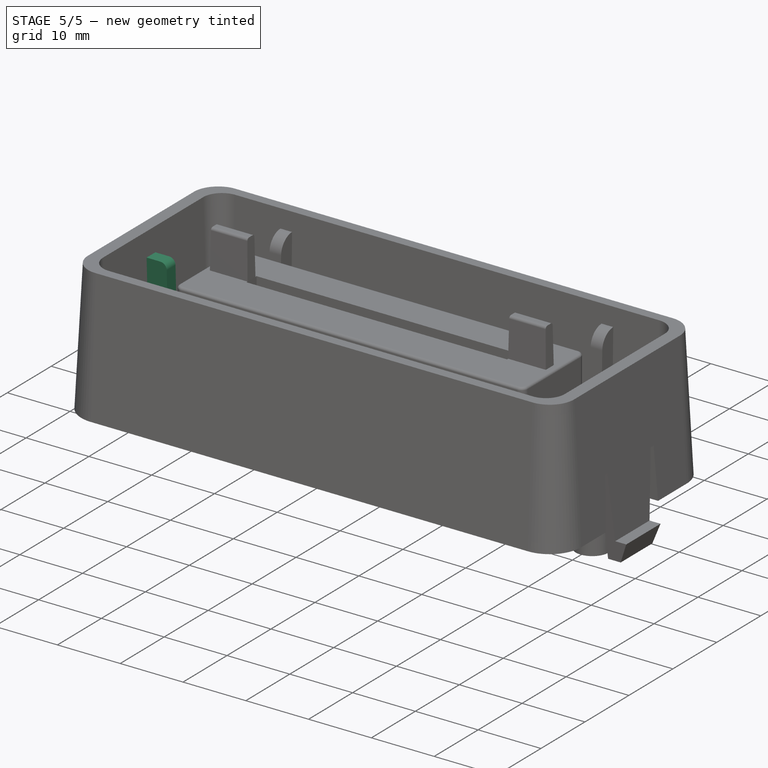
[diagram: stage 5 of 5 — iso view after this stage's code; geometry added in this stage tinted green]
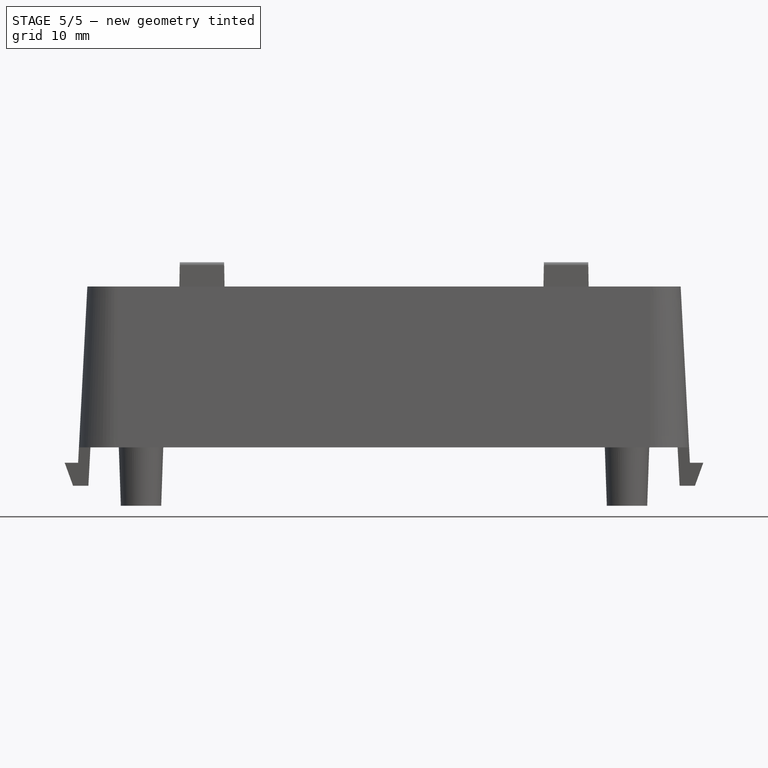
[diagram: stage 5 of 5 — front view after this stage's code; geometry added in this stage tinted green]
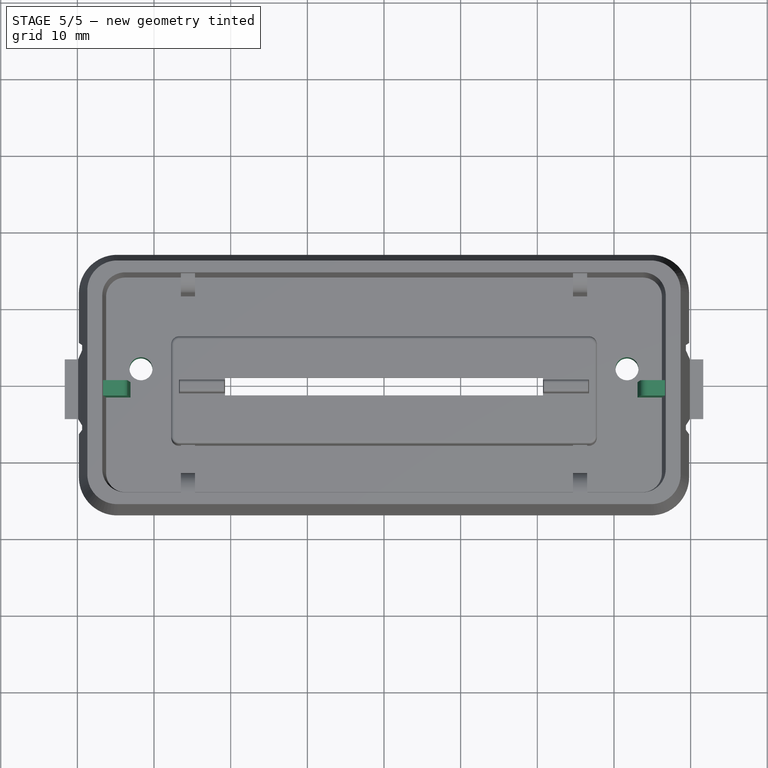
[diagram: stage 5 of 5 — top view after this stage's code; geometry added in this stage tinted green]
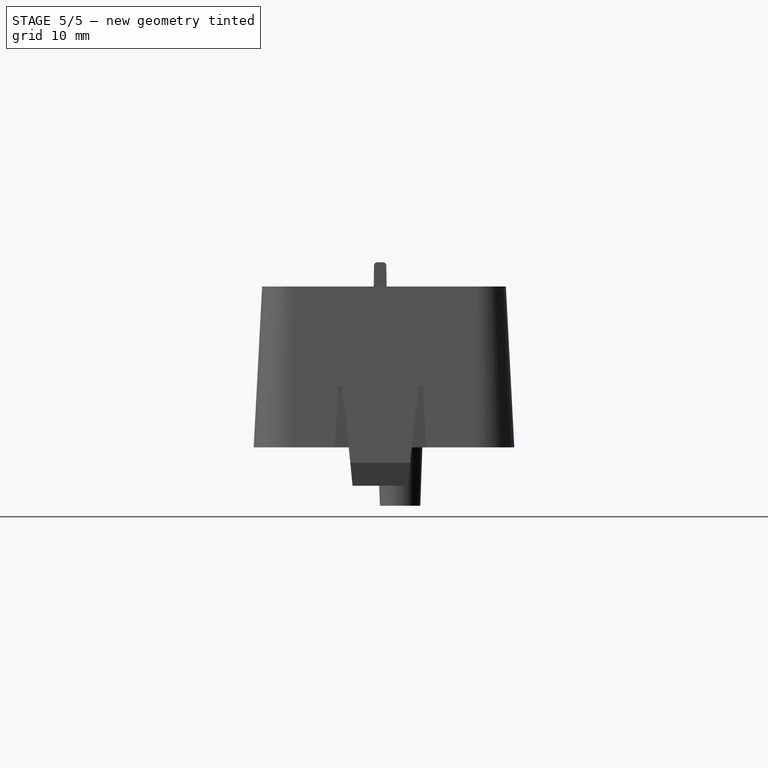
[diagram: stage 5 of 5 — right view after this stage's code; geometry added in this stage tinted green]
FEATURE [Sketcher::SketchObject] Sketch012
  ArcFitTolerance = 1e-06
  AttachmentSupport = -> [Pocket004]
  ExternalGeometry = -> [Pocket004]
  FullyConstrained = true
  MakeInternals = false
  MapMode = 5
  Placement = pos=(0,0,-7.6) rot=(1,0,0;3.14159rad)
  sketch-geometry (2):
    g0: Circle CenterX=-31.7 CenterY=-2.1 CenterZ=0 NormalX=0 NormalY=0 NormalZ=1 AngleXU=0 Radius=1.5
    g1: Circle CenterX=31.7 CenterY=-2.1 CenterZ=0 NormalX=0 NormalY=0 NormalZ=1 AngleXU=0 Radius=1.5
  constraints (4):
    c: Diameter(g0) = 3
    c: Coincident(g0,g-4)
    c: Coincident(g1,g-3)
    c: Equal(g1,g0)
FEATURE [PartDesign::Pocket] Pocket005
  BaseFeature = -> Pocket004
  Direction = (0,0,1)
  Length = 5
  Length2 = 5
  Profile = -> Sketch012
  ReferenceAxis = -> Sketch012 [N_Axis]
  Suppressed = false
  Type = 1
FEATURE [Sketcher::SketchObject] Sketch013
  ArcFitTolerance = 1e-06
  AttachmentSupport = -> [Pocket005]
  ExternalGeometry = -> [Pocket005]
  FullyConstrained = true
  MakeInternals = false
  MapMode = 5
  Placement = pos=(0,-1.65,0) rot=(0,0.707107,0.707107;3.14159rad)
  sketch-geometry (10):
    g0: LineSegment StartX=36.6526 StartY=17.3 StartZ=0 EndX=34.4523 EndY=17.3 EndZ=0
    g1: ArcOfCircle CenterX=34.4523 CenterY=16.3 CenterZ=0 NormalX=0 NormalY=0 NormalZ=1 AngleXU=0 Radius=1 StartAngle=1.5708 EndAngle=3.11528
    g2: LineSegment StartX=33.4526 StartY=16.3263 StartZ=0 EndX=33.0756 EndY=2 EndZ=0
    g3: LineSegment StartX=33.0756 StartY=2 StartZ=0 EndX=36.25 EndY=2 EndZ=0
    g4: LineSegment StartX=36.25 StartY=2 StartZ=0 EndX=36.6526 EndY=17.3 EndZ=0
    g5: LineSegment StartX=-36.6526 StartY=17.3 StartZ=0 EndX=-34.4523 EndY=17.3 EndZ=0
    g6: ArcOfCircle CenterX=-34.4523 CenterY=16.3 CenterZ=0 NormalX=0 NormalY=0 NormalZ=1 AngleXU=0 Radius=1 StartAngle=0.0263097 EndAngle=1.5708
    g7: LineSegment StartX=-33.4526 StartY=16.3263 StartZ=0 EndX=-33.0756 EndY=2 EndZ=0
    g8: LineSegment StartX=-33.0756 StartY=2 StartZ=0 EndX=-36.25 EndY=2 EndZ=0
    g9: LineSegment StartX=-36.25 StartY=2 StartZ=0 EndX=-36.6526 EndY=17.3 EndZ=0
  constraints (26):
    c: PointOnObject(g0,g-3)
    c: Horizontal(g0)
    c: Tangent(g0,g1) = -1.5708
    c: Coincident(g2,g3)
    c: Coincident(g3,g-3)
    c: Coincident(g3,g4)
    c: Coincident(g4,g0)
    c: Horizontal(g3)
    c: DistanceX(g1,g0) = 3.2
    c: Parallel(g2,g4)
    c: Tangent(g1,g2) = -1.5708
    c: DistanceY(g3,g0) = 15.3
    c: Radius(g1) = 1
    c: PointOnObject(g5,g-4)
    c: Horizontal(g5)
    c: Tangent(g5,g6) = 1.5708
    c: Coincident(g7,g8)
    c: Coincident(g8,g-4)
    c: Horizontal(g8)
    c: Coincident(g8,g9)
    c: Coincident(g9,g5)
    c: Tangent(g6,g7) = 1.5708
    c: Parallel(g9,g7)
    c: Equal(g6,g1)
    c: Equal(g8,g3)
    c: Equal(g9,g4)
FEATURE [PartDesign::Pad] Pad007
  BaseFeature = -> Pocket005
  Direction = (0,1,-2e-16)
  Length = 2
  Length2 = 10
  Profile = -> Sketch013
  ReferenceAxis = -> Sketch013 [N_Axis]
  Suppressed = false
  Type = 0
FEATURE [PartDesign::Fillet] Fillet
  Base = -> Pad007 [Edge312,Edge309,Edge307,Edge304,Edge282]
  BaseFeature = -> Pad007
  Radius = 0.4
  SupportTransform = false
  Suppressed = false
  UseAllEdges = false
FEATURE [PartDesign::Body] Body
  AllowCompound = false
  Group = -> [Sketch,Pad,Sketch001,Sketch002,SubtractiveLoft,Sketch003,Pad001,Sketch004,Pocket,Sketch005,Pocket001,Sketch006,Pad002,Sketch007,Binder,Pad003,Pad004,Sketch008,Pad005,Sketch009,Pocket002,Sketch010,Pad006,Sketch011,Pocket003,Binder001,Pocket004,Sketch012,Pocket005,Sketch013,Pad007,Fillet]
  Origin = -> Origin
  Tip = -> Fillet
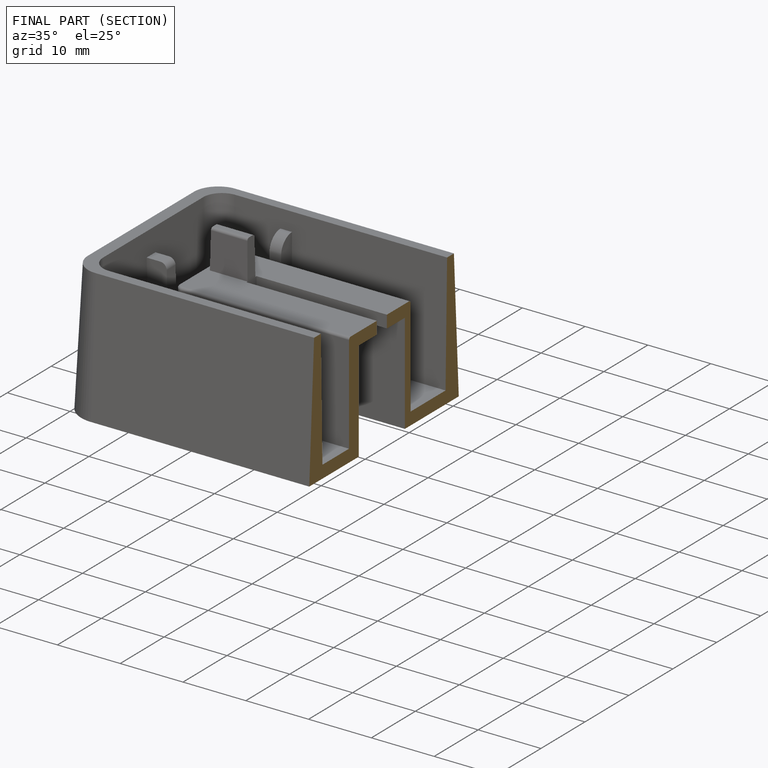
[diagram: finished part — half-section view (interior)]
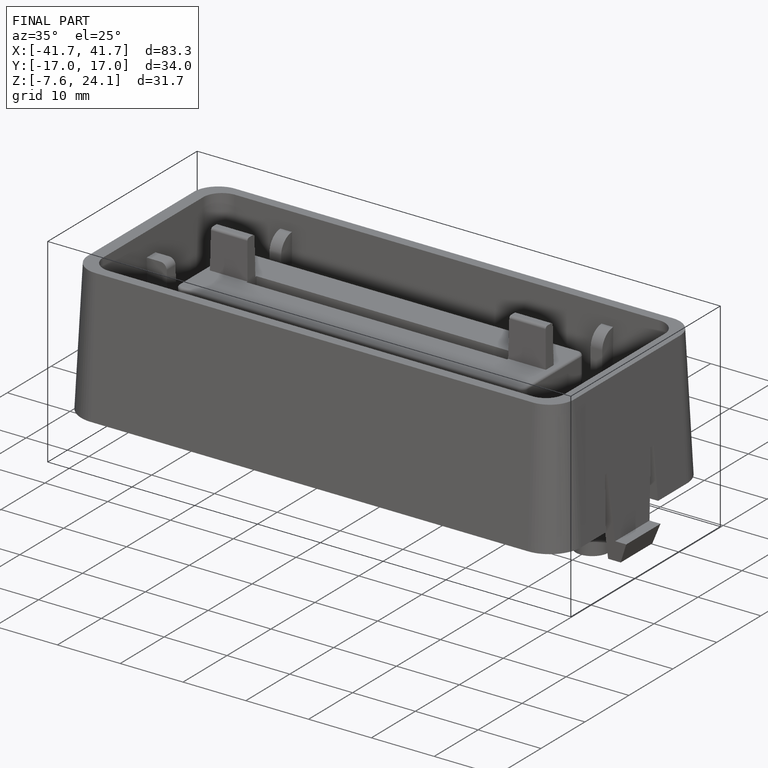
[diagram: finished part — iso view with bounding-box wireframe]
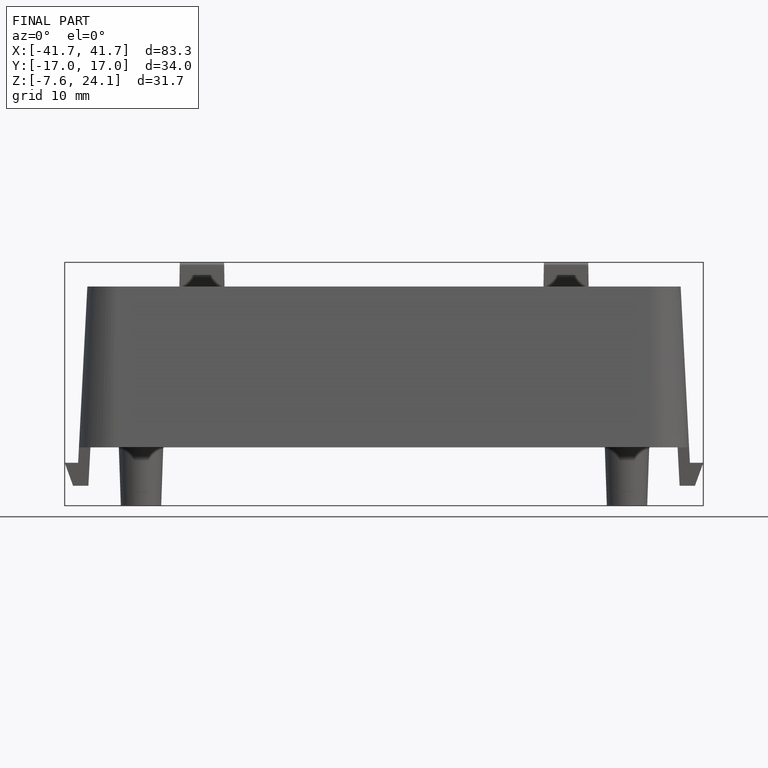
[diagram: finished part — front view with bounding-box wireframe]
